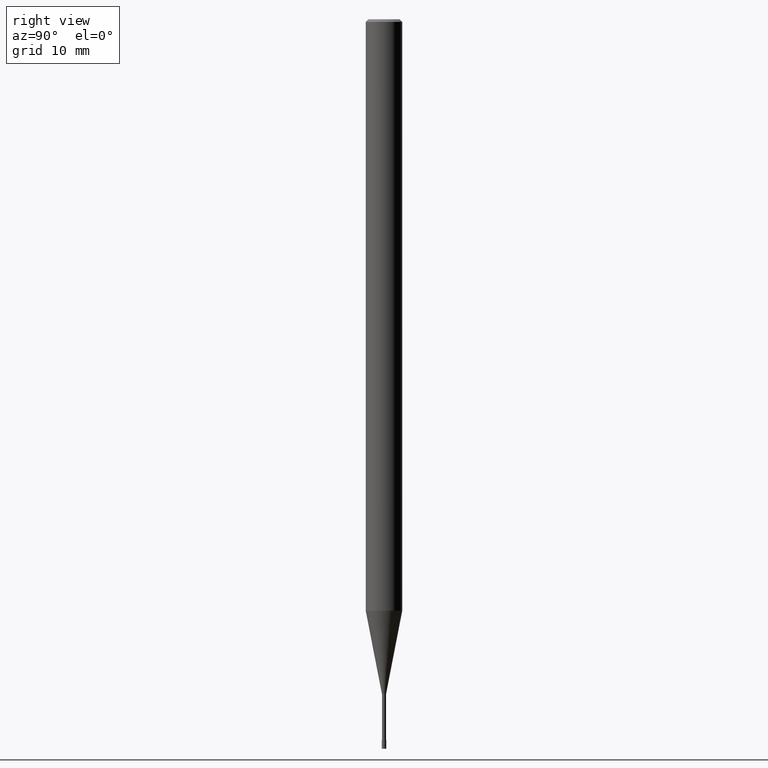
[diagram: clean part render]
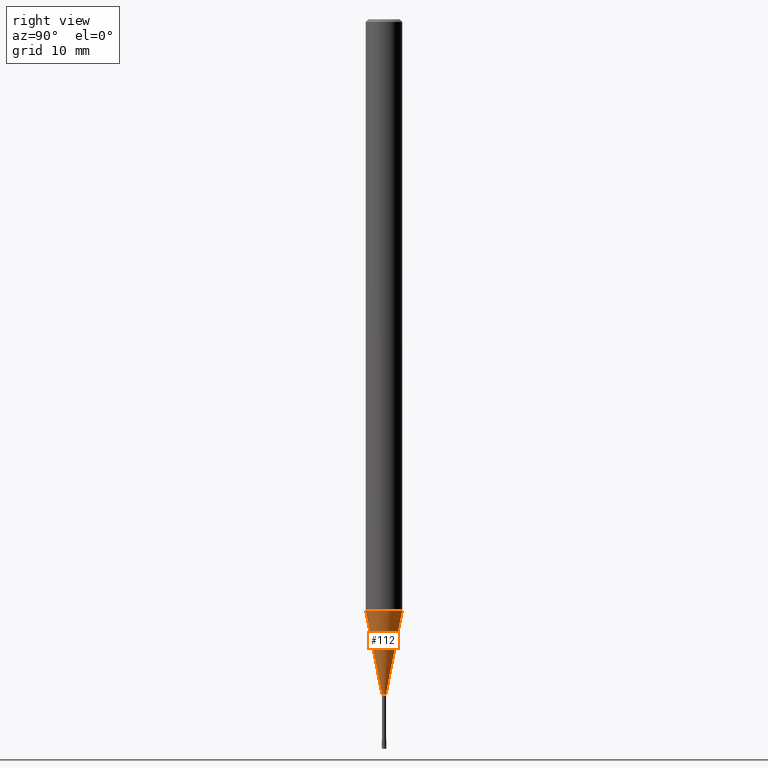
[diagram: same view with one face highlighted and labeled with its STEP entity id]
A machine part, right view. The second image highlights one B-rep face of the part: STEP entity #112.
In plain terms, the highlighted conical surface has half-angle 11 deg.
Its self-contained STEP definition (entity closure, byte-faithful):
#100=VERTEX_POINT('',#240);
#108=EDGE_CURVE('',#152,#170,#249,.T.);
#112=ADVANCED_FACE('',(#254),#255,.T.);
#138=EDGE_CURVE('',#200,#152,#283,.T.);
#152=VERTEX_POINT('',#297);
#154=EDGE_CURVE('',#100,#170,#299,.T.);
#170=VERTEX_POINT('',#318);
#186=EDGE_CURVE('',#100,#200,#335,.T.);
#200=VERTEX_POINT('',#351);
#240=CARTESIAN_POINT('',(0.0,1.99995,-64.868));
#249=LINE('',#394,#395);
#254=FACE_OUTER_BOUND('',#400,.T.);
#255=CONICAL_SURFACE('',#401,1.11245,0.191977672522416);
#283=CIRCLE('',#438,0.22495);
#297=CARTESIAN_POINT('',(2.75475199292344E-017,-0.22495,-74.0));
#299=CIRCLE('',#464,1.99995);
#318=CARTESIAN_POINT('',(2.44915147732706E-016,-1.99995,-64.868));
#335=LINE('',#507,#508);
#351=CARTESIAN_POINT('',(0.0,0.22495,-74.0));
#394=CARTESIAN_POINT('',(1.3623133383097E-016,-1.11245,-69.434));
#395=VECTOR('',#571,1.0);
#400=EDGE_LOOP('',(#581,#582,#583,#584));
#401=AXIS2_PLACEMENT_3D('',#585,#586,#587);
#438=AXIS2_PLACEMENT_3D('',#615,#616,#617);
#464=AXIS2_PLACEMENT_3D('',#630,#631,#632);
#507=CARTESIAN_POINT('',(-1.3623133383097E-016,1.11245,-69.434));
#508=VECTOR('',#681,1.0);
#571=DIRECTION('',(2.33655635855942E-017,-0.190800607171954,0.981628813912272));
#581=ORIENTED_EDGE('',*,*,#186,.F.);
#582=ORIENTED_EDGE('',*,*,#154,.T.);
#583=ORIENTED_EDGE('',*,*,#108,.F.);
#584=ORIENTED_EDGE('',*,*,#138,.F.);
#585=CARTESIAN_POINT('',(0.0,0.0,-69.434));
#586=DIRECTION('',(-0.0,-0.0,1.0));
#587=DIRECTION('',(0.0,1.0,0.0));
#615=CARTESIAN_POINT('',(0.0,0.0,-74.0));
#616=DIRECTION('',(0.0,0.0,-1.0));
#617=DIRECTION('',(0.0,1.0,0.0));
#630=CARTESIAN_POINT('',(0.0,0.0,-64.868));
#631=DIRECTION('',(0.0,0.0,-1.0));
#632=DIRECTION('',(0.0,1.0,0.0));
#681=DIRECTION('',(2.33655635855942E-017,-0.190800607171954,-0.981628813912272));